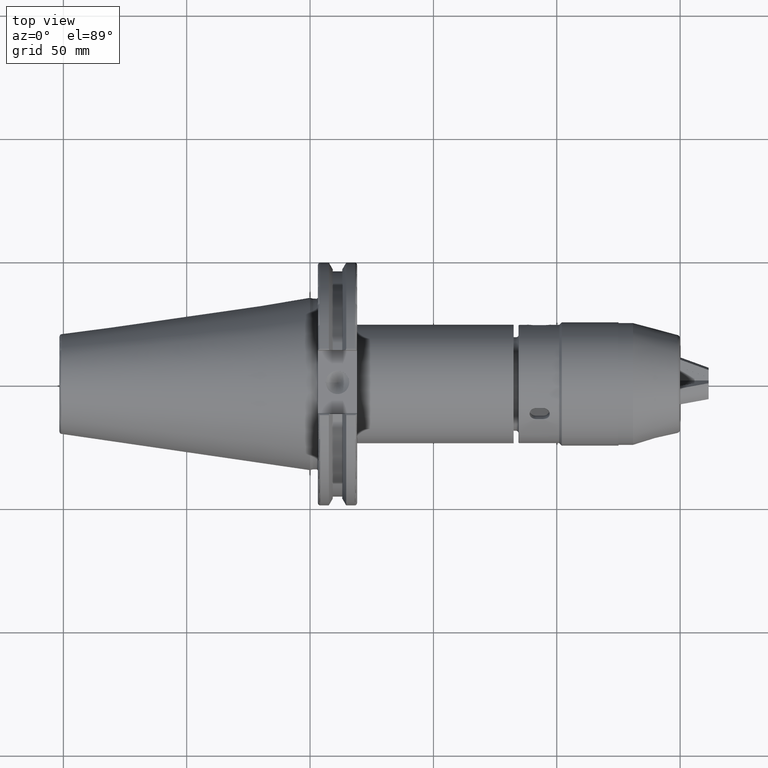
[diagram: clean part render]
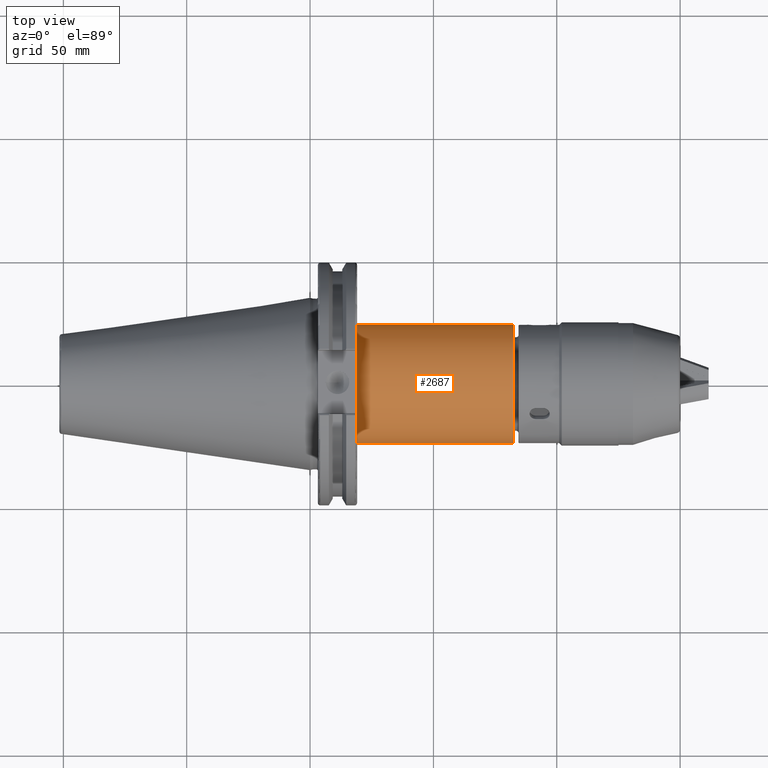
[diagram: same view with one face highlighted and labeled with its STEP entity id]
A machine part, top view. The second image highlights one B-rep face of the part: STEP entity #2687.
In plain terms, the highlighted cylindrical surface (bore or boss wall) has radius 24 mm, axis along (1, 0, 0).
Its self-contained STEP definition (entity closure, byte-faithful):
#535=FACE_OUTER_BOUND('',#688,.T.);
#688=EDGE_LOOP('',(#1960,#1961,#1962,#1963));
#853=LINE('',#4290,#1050);
#1050=VECTOR('',#3420,24.);
#1250=CIRCLE('',#3054,24.);
#1251=CIRCLE('',#3055,24.);
#1361=VERTEX_POINT('',#4287);
#1362=VERTEX_POINT('',#4289);
#1595=EDGE_CURVE('',#1361,#1361,#1250,.T.);
#1596=EDGE_CURVE('',#1361,#1362,#853,.T.);
#1597=EDGE_CURVE('',#1362,#1362,#1251,.T.);
#1960=ORIENTED_EDGE('',*,*,#1595,.F.);
#1961=ORIENTED_EDGE('',*,*,#1596,.T.);
#1962=ORIENTED_EDGE('',*,*,#1597,.F.);
#1963=ORIENTED_EDGE('',*,*,#1596,.F.);
#2648=CYLINDRICAL_SURFACE('',#3053,24.);
#2687=ADVANCED_FACE('',(#535),#2648,.T.);
#3053=AXIS2_PLACEMENT_3D('',#4286,#3416,#3417);
#3054=AXIS2_PLACEMENT_3D('',#4288,#3418,#3419);
#3055=AXIS2_PLACEMENT_3D('',#4291,#3421,#3422);
#3416=DIRECTION('center_axis',(1.,0.,0.));
#3417=DIRECTION('ref_axis',(0.,1.,0.));
#3418=DIRECTION('center_axis',(1.,0.,0.));
#3419=DIRECTION('ref_axis',(0.,0.,-1.));
#3420=DIRECTION('',(-1.,0.,0.));
#3421=DIRECTION('center_axis',(-1.,0.,0.));
#3422=DIRECTION('ref_axis',(0.,1.,0.));
#4286=CARTESIAN_POINT('Origin',(50.775,0.,0.));
#4287=CARTESIAN_POINT('',(82.5,-24.,-2.93915231795365E-15));
#4288=CARTESIAN_POINT('Origin',(82.5,0.,0.));
#4289=CARTESIAN_POINT('',(19.05,-24.,-2.93915231795365E-15));
#4290=CARTESIAN_POINT('',(50.775,-24.,-2.93915231795365E-15));
#4291=CARTESIAN_POINT('Origin',(19.05,0.,0.));